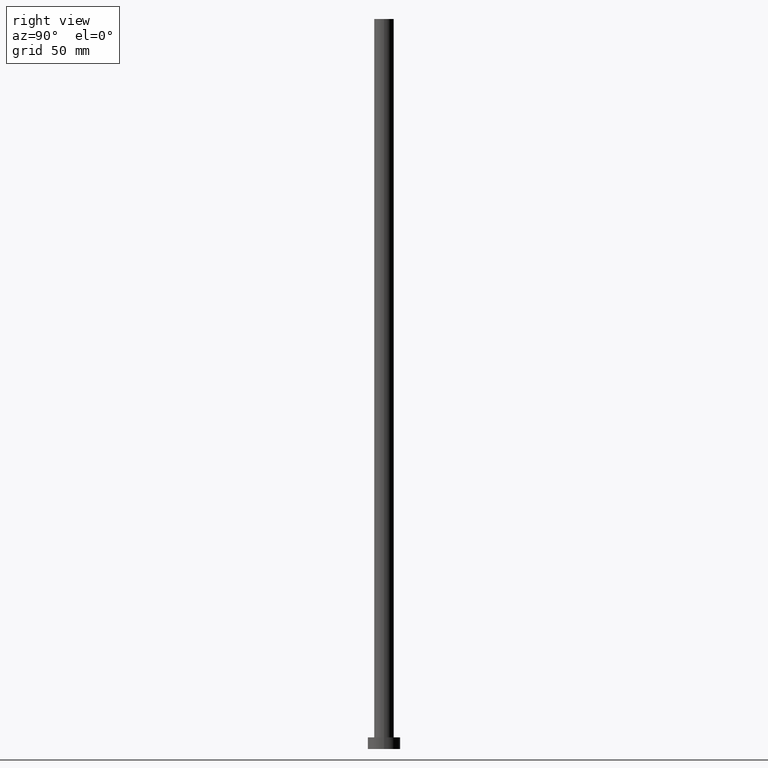
[diagram: clean part render]
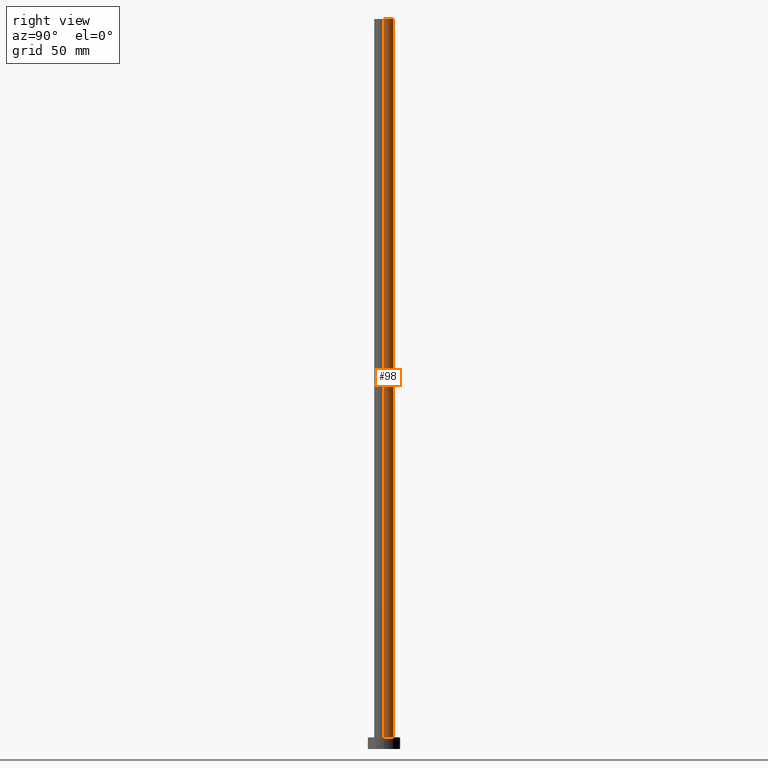
[diagram: same view with one face highlighted and labeled with its STEP entity id]
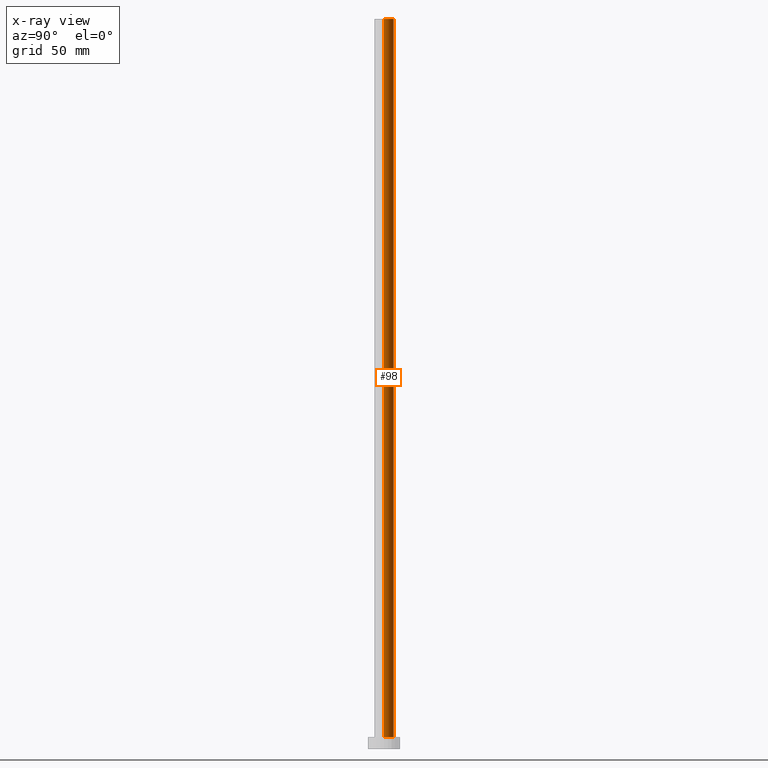
[diagram: x-ray of the same camera — body ghosted, the highlighted face saturated]
A machine part, right view. The second image highlights one B-rep face of the part: STEP entity #98.
The next image is the same camera in x-ray: the body ghosted, the highlighted face saturated — about 0% of this face is hidden behind the body in this view.
In plain terms, the highlighted cylindrical surface (edge-blend (fillet) strip) has radius 4.25 mm, axis along (-0, -0, -1).
Its self-contained STEP definition (entity closure, byte-faithful):
#2 = VERTEX_POINT ( 'NONE', #238 ) ;
#6 = ORIENTED_EDGE ( 'NONE', *, *, #92, .T. ) ;
#7 = DIRECTION ( 'NONE',  ( -0.000000000000000000, -0.000000000000000000, -1.000000000000000000 ) ) ;
#17 = VECTOR ( 'NONE', #82, 1000.000000000000000 ) ;
#20 = VERTEX_POINT ( 'NONE', #137 ) ;
#22 = DIRECTION ( 'NONE',  ( -0.000000000000000000, -0.000000000000000000, -1.000000000000000000 ) ) ;
#25 = CARTESIAN_POINT ( 'NONE',  ( 4.250000000000000000, 5.204748896376250699E-16, 315.0000000000000000 ) ) ;
#27 = EDGE_CURVE ( 'NONE', #49, #2, #70, .T. ) ;
#41 = DIRECTION ( 'NONE',  ( -1.000000000000000000, 0.000000000000000000, 0.000000000000000000 ) ) ;
#49 = VERTEX_POINT ( 'NONE', #196 ) ;
#51 = CARTESIAN_POINT ( 'NONE',  ( 0.000000000000000000, 0.000000000000000000, 5.000000000000000000 ) ) ;
#62 = CARTESIAN_POINT ( 'NONE',  ( -4.250000000000000000, 0.000000000000000000, 315.0000000000000000 ) ) ;
#70 = CIRCLE ( 'NONE', #170, 4.250000000000000000 ) ;
#76 = ORIENTED_EDGE ( 'NONE', *, *, #163, .F. ) ;
#82 = DIRECTION ( 'NONE',  ( -0.000000000000000000, -0.000000000000000000, -1.000000000000000000 ) ) ;
#83 = CARTESIAN_POINT ( 'NONE',  ( -4.250000000000000000, 0.000000000000000000, 315.0000000000000000 ) ) ;
#92 = EDGE_CURVE ( 'NONE', #20, #49, #116, .T. ) ;
#95 = CARTESIAN_POINT ( 'NONE',  ( 0.000000000000000000, 0.000000000000000000, 315.0000000000000000 ) ) ;
#98 = ADVANCED_FACE ( 'NONE', ( #197 ), #222, .T. ) ;
#101 = EDGE_CURVE ( 'NONE', #20, #136, #128, .T. ) ;
#111 = AXIS2_PLACEMENT_3D ( 'NONE', #164, #22, #41 ) ;
#115 = ORIENTED_EDGE ( 'NONE', *, *, #101, .F. ) ;
#116 = LINE ( 'NONE', #25, #190 ) ;
#128 = CIRCLE ( 'NONE', #149, 4.250000000000000000 ) ;
#136 = VERTEX_POINT ( 'NONE', #62 ) ;
#137 = CARTESIAN_POINT ( 'NONE',  ( 4.250000000000000000, 5.204748896376250699E-16, 315.0000000000000000 ) ) ;
#141 = DIRECTION ( 'NONE',  ( 1.000000000000000000, 0.000000000000000000, 0.000000000000000000 ) ) ;
#149 = AXIS2_PLACEMENT_3D ( 'NONE', #95, #245, #141 ) ;
#158 = DIRECTION ( 'NONE',  ( 1.000000000000000000, 0.000000000000000000, 0.000000000000000000 ) ) ;
#163 = EDGE_CURVE ( 'NONE', #136, #2, #202, .T. ) ;
#164 = CARTESIAN_POINT ( 'NONE',  ( 0.000000000000000000, 0.000000000000000000, 315.0000000000000000 ) ) ;
#170 = AXIS2_PLACEMENT_3D ( 'NONE', #51, #215, #158 ) ;
#190 = VECTOR ( 'NONE', #7, 1000.000000000000000 ) ;
#196 = CARTESIAN_POINT ( 'NONE',  ( 4.250000000000000000, 5.204748896376250699E-16, 5.000000000000000000 ) ) ;
#197 = FACE_OUTER_BOUND ( 'NONE', #241, .T. ) ;
#202 = LINE ( 'NONE', #83, #17 ) ;
#213 = ORIENTED_EDGE ( 'NONE', *, *, #27, .T. ) ;
#215 = DIRECTION ( 'NONE',  ( 0.000000000000000000, 0.000000000000000000, 1.000000000000000000 ) ) ;
#222 = CYLINDRICAL_SURFACE ( 'NONE', #111, 4.250000000000000000 ) ;
#238 = CARTESIAN_POINT ( 'NONE',  ( -4.250000000000000000, 0.000000000000000000, 5.000000000000000000 ) ) ;
#241 = EDGE_LOOP ( 'NONE', ( #115, #6, #213, #76 ) ) ;
#245 = DIRECTION ( 'NONE',  ( 0.000000000000000000, 0.000000000000000000, 1.000000000000000000 ) ) ;